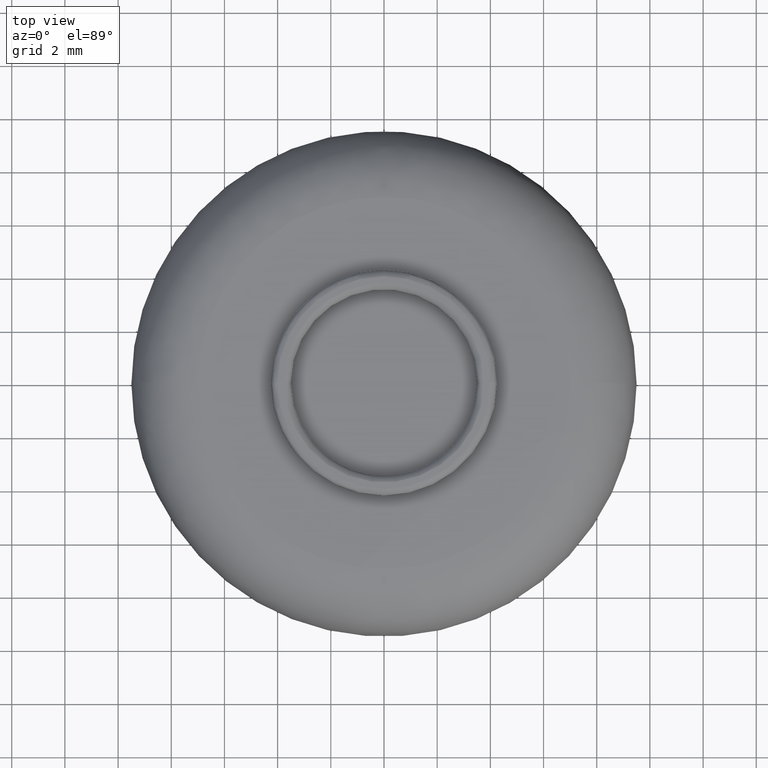
[diagram: clean part render]
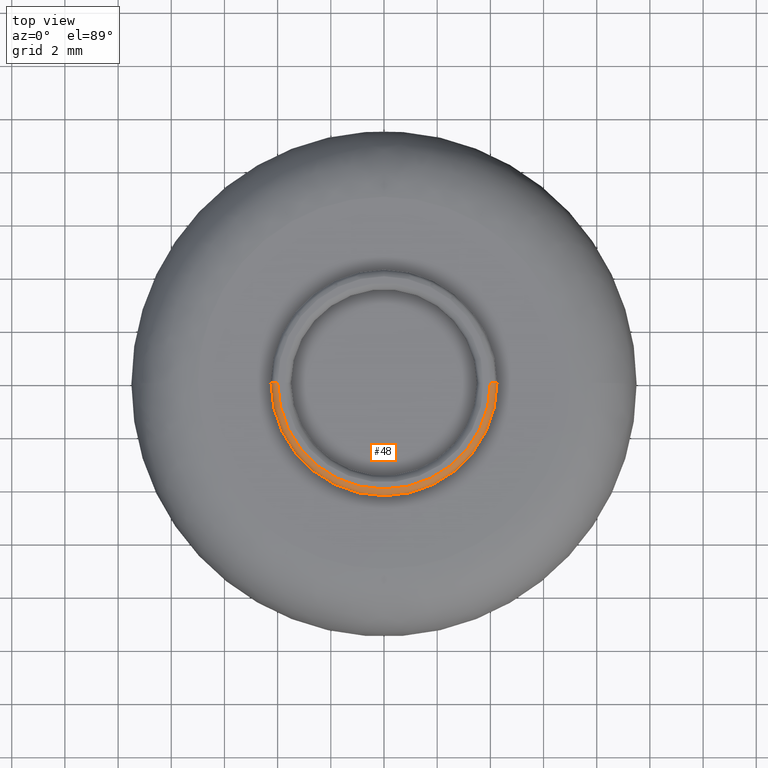
[diagram: same view with one face highlighted and labeled with its STEP entity id]
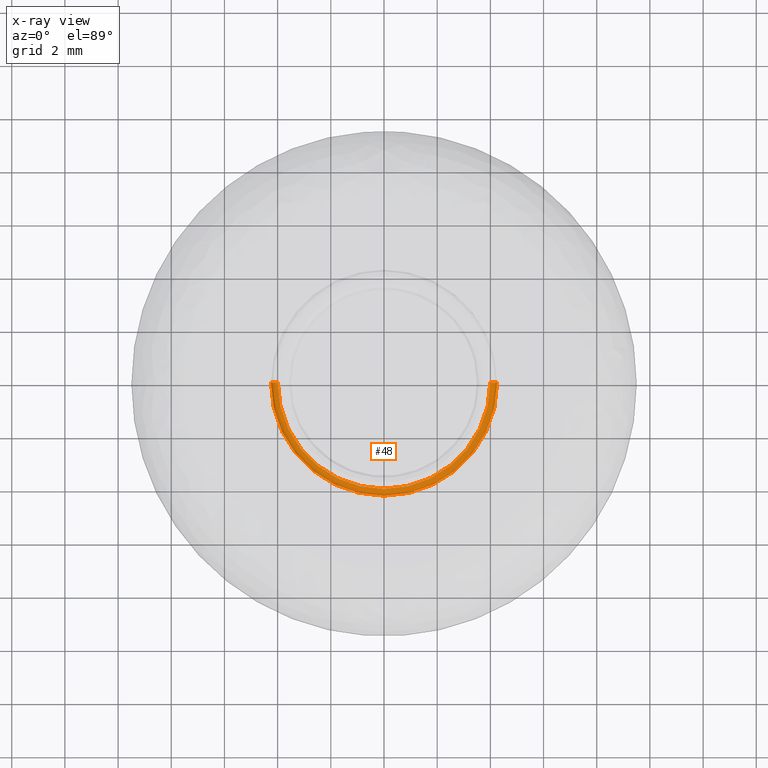
[diagram: x-ray of the same camera — body ghosted, the highlighted face saturated]
A machine part, top view. The second image highlights one B-rep face of the part: STEP entity #48.
The next image is the same camera in x-ray: the body ghosted, the highlighted face saturated — about 0% of this face is hidden behind the body in this view.
In plain terms, the highlighted face is a freeform B-spline surface patch.
Its self-contained STEP definition (entity closure, byte-faithful):
#48=ADVANCED_FACE('',(#149),#148,.T.);
#148=( BOUNDED_SURFACE() B_SPLINE_SURFACE( 2,2,((#364,#365,#366,#367,#368),(#369,#370,#371,#372,#373),(#374,#375,#376,#377,#378),(#379,#380,#381,#382,#383),(#384,#385,#386,#387,#388)), .UNSPECIFIED.,.F.,.F.,.F.) B_SPLINE_SURFACE_WITH_KNOTS((3,2,3),(3,2,3),(0.00000000000E+000,5.00000000000E-001,1.00000000000E+000),(0.00000000000E+000,5.00000000000E-001,1.00000000000E+000), .UNSPECIFIED. ) GEOMETRIC_REPRESENTATION_ITEM() RATIONAL_B_SPLINE_SURFACE(((1.00000000000E+000,7.07106781187E-001,1.00000000000E+000,7.07106781187E-001,1.00000000000E+000),(7.07106781187E-001,5.00000000000E-001,7.07106781187E-001,5.00000000000E-001,7.07106781187E-001),(1.00000000000E+000,7.07106781187E-001,1.00000000000E+000,7.07106781187E-001,1.00000000000E+000),(7.07106781187E-001,5.00000000000E-001,7.07106781187E-001,5.00000000000E-001,7.07106781187E-001),(1.00000000000E+000,7.07106781187E-001,1.00000000000E+000,7.07106781187E-001,1.00000000000E+000))) REPRESENTATION_ITEM('') SURFACE() );
#149=FACE_OUTER_BOUND('',#389,.T.);
#364=CARTESIAN_POINT('',(3.75000000000E+000,-4.85780042608E-016,6.50000000000E-001));
#365=CARTESIAN_POINT('',(3.75000000000E+000,-2.46309251602E-016,9.00000000000E-001));
#366=CARTESIAN_POINT('',(4.00000000000E+000,-2.50355572393E-016,9.00000000000E-001));
#367=CARTESIAN_POINT('',(4.25000000000E+000,-2.54401893184E-016,9.00000000000E-001));
#368=CARTESIAN_POINT('',(4.25000000000E+000,-4.93872684190E-016,6.50000000000E-001));
#369=CARTESIAN_POINT('',(3.75000000000E+000,-3.75000000000E+000,6.50000000000E-001));
#370=CARTESIAN_POINT('',(3.75000000000E+000,-3.75000000000E+000,9.00000000000E-001));
#371=CARTESIAN_POINT('',(4.00000000000E+000,-4.00000000000E+000,9.00000000000E-001));
#372=CARTESIAN_POINT('',(4.25000000000E+000,-4.25000000000E+000,9.00000000000E-001));
#373=CARTESIAN_POINT('',(4.25000000000E+000,-4.25000000000E+000,6.50000000000E-001));
#374=CARTESIAN_POINT('',(1.68926462981E-016,-3.75000000000E+000,6.50000000000E-001));
#375=CARTESIAN_POINT('',(1.68926462981E-016,-3.75000000000E+000,9.00000000000E-001));
#376=CARTESIAN_POINT('',(1.80188227179E-016,-4.00000000000E+000,9.00000000000E-001));
#377=CARTESIAN_POINT('',(1.91449991378E-016,-4.25000000000E+000,9.00000000000E-001));
#378=CARTESIAN_POINT('',(1.91449991378E-016,-4.25000000000E+000,6.50000000000E-001));
#379=CARTESIAN_POINT('',(-3.75000000000E+000,-3.75000000000E+000,6.50000000000E-001));
#380=CARTESIAN_POINT('',(-3.75000000000E+000,-3.75000000000E+000,9.00000000000E-001));
#381=CARTESIAN_POINT('',(-4.00000000000E+000,-4.00000000000E+000,9.00000000000E-001));
#382=CARTESIAN_POINT('',(-4.25000000000E+000,-4.25000000000E+000,9.00000000000E-001));
#383=CARTESIAN_POINT('',(-4.25000000000E+000,-4.25000000000E+000,6.50000000000E-001));
#384=CARTESIAN_POINT('',(-3.75000000000E+000,-8.23632968570E-016,6.50000000000E-001));
#385=CARTESIAN_POINT('',(-3.75000000000E+000,-5.84162177564E-016,9.00000000000E-001));
#386=CARTESIAN_POINT('',(-4.00000000000E+000,-6.10732026752E-016,9.00000000000E-001));
#387=CARTESIAN_POINT('',(-4.25000000000E+000,-6.37301875940E-016,9.00000000000E-001));
#388=CARTESIAN_POINT('',(-4.25000000000E+000,-8.76772666946E-016,6.50000000000E-001));
#389=EDGE_LOOP('',(#614,#615,#616,#617));
#614=ORIENTED_EDGE('',*,*,#674,.T.);
#615=ORIENTED_EDGE('',*,*,#699,.T.);
#616=ORIENTED_EDGE('',*,*,#701,.F.);
#617=ORIENTED_EDGE('',*,*,#700,.F.);
#674=EDGE_CURVE('',#718,#719,#720,.T.);
#699=EDGE_CURVE('',#719,#886,#894,.T.);
#700=EDGE_CURVE('',#718,#887,#900,.T.);
#701=EDGE_CURVE('',#887,#886,#906,.T.);
#718=VERTEX_POINT('',#1010);
#719=VERTEX_POINT('',#1011);
#720=CIRCLE('',#1015,4.00000000000E+000);
#886=VERTEX_POINT('',#1130);
#887=VERTEX_POINT('',#1131);
#894=(BOUNDED_CURVE() B_SPLINE_CURVE(2,(#1136,#1137,#1138),.UNSPECIFIED.,.F.,.F.) B_SPLINE_CURVE_WITH_KNOTS((3,3),(5.00000000000E-001,1.00000000000E+000),.UNSPECIFIED.) CURVE() GEOMETRIC_REPRESENTATION_ITEM() RATIONAL_B_SPLINE_CURVE((1.00000000000E+000,7.07106781187E-001,1.00000000000E+000)) REPRESENTATION_ITEM('') );
#900=(BOUNDED_CURVE() B_SPLINE_CURVE(3,(#1139,#1140,#1141,#1142),.UNSPECIFIED.,.F.,.F.) B_SPLINE_CURVE_WITH_KNOTS((4,4),(4.99994108422E-001,1.00000000000E+000),.UNSPECIFIED.) CURVE() GEOMETRIC_REPRESENTATION_ITEM() RATIONAL_B_SPLINE_CURVE((1.00000000000E+000,1.00000000000E+000,1.00000000000E+000,1.00000000000E+000)) REPRESENTATION_ITEM('') );
#906=CIRCLE('',#1146,4.25000000000E+000);
#1010=CARTESIAN_POINT('',(4.00000000000E+000,1.48029736617E-016,9.00000000000E-001));
#1011=CARTESIAN_POINT('',(-4.00000000000E+000,-9.33931751379E-016,9.00000000000E-001));
#1012=CARTESIAN_POINT('',(0.00000000000E+000,0.00000000000E+000,9.00000000000E-001));
#1013=DIRECTION('',(0.00000000000E+000,0.00000000000E+000,-1.00000000000E+000));
#1014=DIRECTION('',(-1.00000000000E+000,-1.11022302463E-016,-0.00000000000E+000));
#1015=AXIS2_PLACEMENT_3D('',#1012,#1013,#1014);
#1130=CARTESIAN_POINT('',(-4.25000000000E+000,2.96059473233E-016,6.50000000000E-001));
#1131=CARTESIAN_POINT('',(4.25000000000E+000,5.20457700375E-016,6.50000000000E-001));
#1136=CARTESIAN_POINT('',(-4.00000000000E+000,3.68985412566E-016,9.00000000000E-001));
#1137=CARTESIAN_POINT('',(-4.25000000000E+000,4.03647903335E-016,9.00000000000E-001));
#1138=CARTESIAN_POINT('',(-4.25000000000E+000,1.64177112329E-016,6.50000000000E-001));
#1139=CARTESIAN_POINT('',(3.99999583401E+000,-8.88177573269E-016,8.99999999965E-001));
#1140=CARTESIAN_POINT('',(4.15236691384E+000,-1.10829106086E-015,8.85704273597E-001));
#1141=CARTESIAN_POINT('',(4.23570163584E+000,-1.20697783408E-015,8.02370940276E-001));
#1142=CARTESIAN_POINT('',(4.25000000000E+000,-1.18423789293E-015,6.50000000000E-001));
#1143=CARTESIAN_POINT('',(0.00000000000E+000,0.00000000000E+000,6.50000000000E-001));
#1144=DIRECTION('',(0.00000000000E+000,0.00000000000E+000,-1.00000000000E+000));
#1145=DIRECTION('',(1.00000000000E+000,-0.00000000000E+000,-0.00000000000E+000));
#1146=AXIS2_PLACEMENT_3D('',#1143,#1144,#1145);